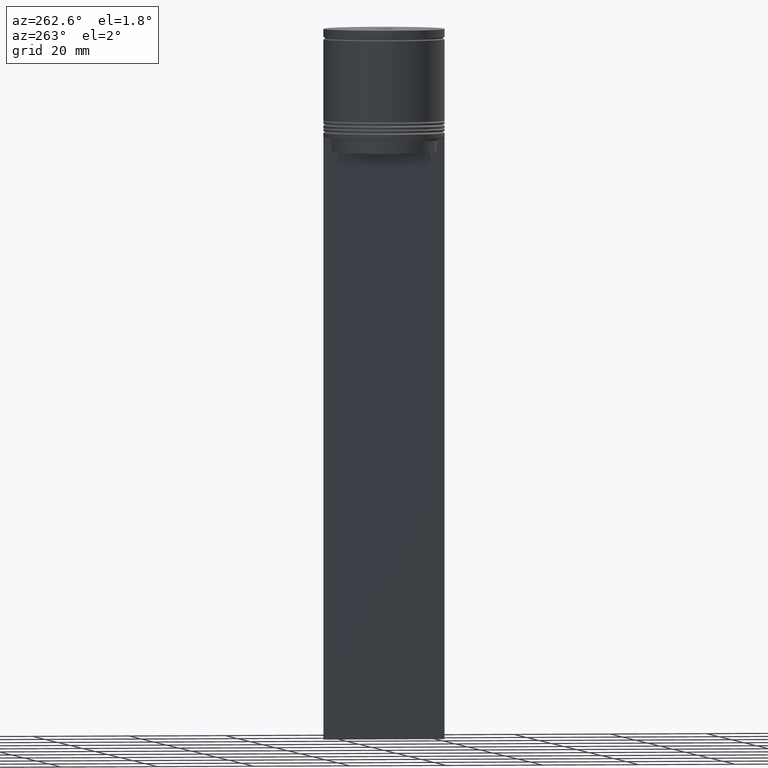
[diagram: clean part render]
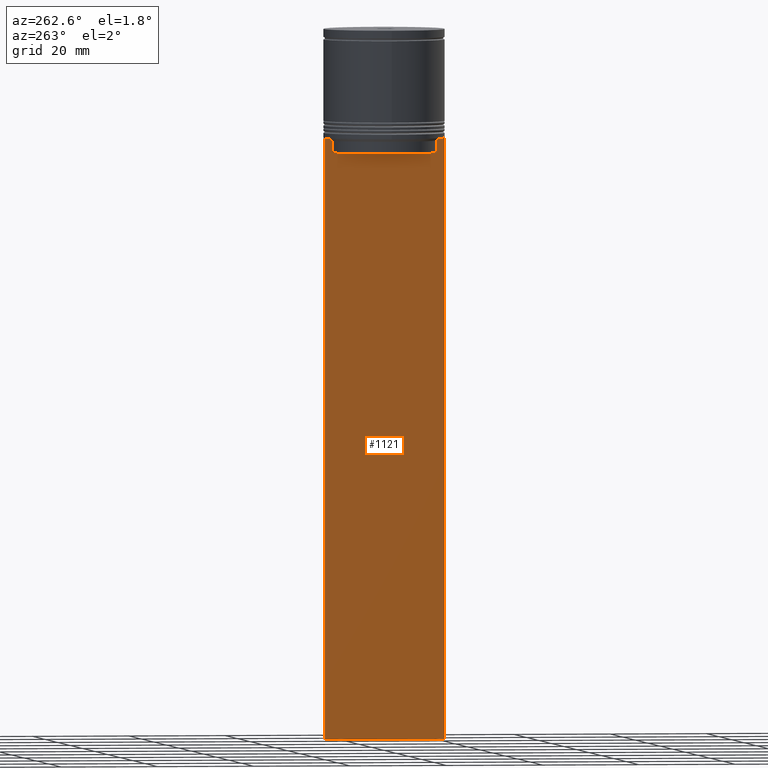
[diagram: same view with one face highlighted and labeled with its STEP entity id]
A machine part, auxiliary view. The second image highlights one B-rep face of the part: STEP entity #1121.
In plain terms, the highlighted planar face has unit normal (-1, 0, 0).
Its self-contained STEP definition (entity closure, byte-faithful):
#1 = ORIENTED_EDGE ( 'NONE', *, *, #25, .F. ) ;
#25 = EDGE_CURVE ( 'NONE', #1956, #538, #380, .T. ) ;
#72 = DIRECTION ( 'NONE',  ( 0.000000000000000000, 0.000000000000000000, -1.000000000000000000 ) ) ;
#97 = CARTESIAN_POINT ( 'NONE',  ( -0.5000000000000000000, 11.38902980942626897, -22.50000000000000000 ) ) ;
#100 = CARTESIAN_POINT ( 'NONE',  ( -0.5000000000000000000, -10.88852607105297032, 0.000000000000000000 ) ) ;
#101 = EDGE_CURVE ( 'NONE', #1593, #1224, #1682, .T. ) ;
#112 = CARTESIAN_POINT ( 'NONE',  ( -0.5000000000000000000, 11.38902980942626897, -22.50000000000000000 ) ) ;
#113 = VERTEX_POINT ( 'NONE', #254 ) ;
#116 = FACE_OUTER_BOUND ( 'NONE', #1432, .T. ) ;
#118 = EDGE_CURVE ( 'NONE', #504, #113, #468, .T. ) ;
#135 = CARTESIAN_POINT ( 'NONE',  ( -0.5000000000000000000, 10.88852607105297032, 0.000000000000000000 ) ) ;
#140 = CARTESIAN_POINT ( 'NONE',  ( -0.5000000000000000000, -12.38991525394746596, -22.50000000000000000 ) ) ;
#166 = LINE ( 'NONE', #822, #1579 ) ;
#168 = CARTESIAN_POINT ( 'NONE',  ( -0.5000000000000000000, -12.49999999999999289, -22.50000000000000000 ) ) ;
#175 = CARTESIAN_POINT ( 'NONE',  ( -0.5000000000000000000, -10.88852607105296855, -25.50000000000000000 ) ) ;
#178 = DIRECTION ( 'NONE',  ( 0.000000000000000000, -1.000000000000000000, 0.000000000000000000 ) ) ;
#217 = VECTOR ( 'NONE', #72, 1000.000000000000000 ) ;
#240 = VECTOR ( 'NONE', #577, 1000.000000000000000 ) ;
#249 = CARTESIAN_POINT ( 'NONE',  ( -0.5000000000000000000, 12.50000000000000711, -22.50000000000000000 ) ) ;
#254 = CARTESIAN_POINT ( 'NONE',  ( -0.5000000000000000000, 10.88852607105297032, -22.99999999999999645 ) ) ;
#289 = VERTEX_POINT ( 'NONE', #168 ) ;
#359 = ORIENTED_EDGE ( 'NONE', *, *, #1865, .T. ) ;
#380 = LINE ( 'NONE', #716, #1332 ) ;
#419 = CARTESIAN_POINT ( 'NONE',  ( -0.5000000000000000000, -11.05536450423839412, -22.83333718996392747 ) ) ;
#432 = DIRECTION ( 'NONE',  ( -1.000000000000000000, 0.000000000000000000, 0.000000000000000000 ) ) ;
#434 = ORIENTED_EDGE ( 'NONE', *, *, #826, .F. ) ;
#442 = LINE ( 'NONE', #135, #2019 ) ;
#453 = CARTESIAN_POINT ( 'NONE',  ( -0.5000000000000000000, -12.49999999999999289, -22.50000000000000000 ) ) ;
#456 = ORIENTED_EDGE ( 'NONE', *, *, #2080, .F. ) ;
#460 = VERTEX_POINT ( 'NONE', #249 ) ;
#468 = B_SPLINE_CURVE_WITH_KNOTS ( 'NONE', 3,
 ( #97, #1361, #2013, #1290 ),
 .UNSPECIFIED., .F., .F.,
 ( 4, 4 ),
 ( 0.01935560801904635808, 0.02006307108468587813 ),
 .UNSPECIFIED. ) ;
#479 = CARTESIAN_POINT ( 'NONE',  ( -0.5000000000000000000, -10.88852607105297032, -22.99999999999999645 ) ) ;
#484 = EDGE_CURVE ( 'NONE', #1188, #622, #1080, .T. ) ;
#504 = VERTEX_POINT ( 'NONE', #112 ) ;
#517 = DIRECTION ( 'NONE',  ( 0.000000000000000000, -1.000000000000000000, 0.000000000000000000 ) ) ;
#525 = CARTESIAN_POINT ( 'NONE',  ( -0.5000000000000000000, 12.50000000000000711, 2.519992006393609874 ) ) ;
#538 = VERTEX_POINT ( 'NONE', #2061 ) ;
#550 = CARTESIAN_POINT ( 'NONE',  ( -0.5000000000000000000, -12.49999999999999289, 2.519992006393609874 ) ) ;
#561 = VECTOR ( 'NONE', #178, 1000.000000000000000 ) ;
#577 = DIRECTION ( 'NONE',  ( -0.000000000000000000, -0.000000000000000000, 1.000000000000000000 ) ) ;
#590 = CARTESIAN_POINT ( 'NONE',  ( -0.5000000000000000000, -10.88852607105297032, -22.99999999999999645 ) ) ;
#612 = ORIENTED_EDGE ( 'NONE', *, *, #630, .F. ) ;
#622 = VERTEX_POINT ( 'NONE', #1128 ) ;
#630 = EDGE_CURVE ( 'NONE', #1368, #289, #166, .T. ) ;
#647 = CARTESIAN_POINT ( 'NONE',  ( -0.5000000000000000000, -12.49999999999999289, -22.50000000000000000 ) ) ;
#686 = LINE ( 'NONE', #453, #561 ) ;
#715 = CARTESIAN_POINT ( 'NONE',  ( -0.5000000000000000000, 10.90000000000000924, -25.50000000000000000 ) ) ;
#716 = CARTESIAN_POINT ( 'NONE',  ( -0.5000000000000000000, -12.49999999999999289, -146.5000000000000000 ) ) ;
#740 = LINE ( 'NONE', #100, #240 ) ;
#773 = VECTOR ( 'NONE', #1287, 1000.000000000000000 ) ;
#789 = ORIENTED_EDGE ( 'NONE', *, *, #978, .F. ) ;
#822 = CARTESIAN_POINT ( 'NONE',  ( -0.5000000000000000000, -12.49999999999999289, -22.50000000000000000 ) ) ;
#826 = EDGE_CURVE ( 'NONE', #289, #1956, #1809, .T. ) ;
#830 = CARTESIAN_POINT ( 'NONE',  ( -0.5000000000000000000, -12.49999999999999289, -22.50000000000000000 ) ) ;
#834 = ORIENTED_EDGE ( 'NONE', *, *, #101, .F. ) ;
#848 = LINE ( 'NONE', #525, #1980 ) ;
#874 = EDGE_CURVE ( 'NONE', #622, #1368, #1148, .T. ) ;
#878 = CARTESIAN_POINT ( 'NONE',  ( -0.5000000000000000000, -11.22219891450653151, -22.66667035398018726 ) ) ;
#879 = ORIENTED_EDGE ( 'NONE', *, *, #118, .F. ) ;
#912 = PLANE ( 'NONE',  #1804 ) ;
#924 = EDGE_CURVE ( 'NONE', #460, #1859, #1312, .T. ) ;
#934 = ORIENTED_EDGE ( 'NONE', *, *, #484, .F. ) ;
#978 = EDGE_CURVE ( 'NONE', #113, #1593, #442, .T. ) ;
#1007 = VECTOR ( 'NONE', #517, 1000.000000000000000 ) ;
#1080 = B_SPLINE_CURVE_WITH_KNOTS ( 'NONE', 3,
 ( #590, #419, #878, #2022 ),
 .UNSPECIFIED., .F., .F.,
 ( 4, 4 ),
 ( 0.05041323384703231408, 0.05112713601261610619 ),
 .UNSPECIFIED. ) ;
#1092 = DIRECTION ( 'NONE',  ( 0.000000000000000000, 0.000000000000000000, -1.000000000000000000 ) ) ;
#1121 = ADVANCED_FACE ( 'NONE', ( #116 ), #912, .T. ) ;
#1128 = CARTESIAN_POINT ( 'NONE',  ( -0.5000000000000000000, -11.38902980942626897, -22.50000000000000000 ) ) ;
#1147 = ORIENTED_EDGE ( 'NONE', *, *, #924, .F. ) ;
#1148 = LINE ( 'NONE', #647, #773 ) ;
#1187 = DIRECTION ( 'NONE',  ( 0.000000000000000000, -1.000000000000000000, 0.000000000000000000 ) ) ;
#1188 = VERTEX_POINT ( 'NONE', #479 ) ;
#1222 = ORIENTED_EDGE ( 'NONE', *, *, #874, .F. ) ;
#1224 = VERTEX_POINT ( 'NONE', #175 ) ;
#1287 = DIRECTION ( 'NONE',  ( 0.000000000000000000, -1.000000000000000000, 0.000000000000000000 ) ) ;
#1290 = CARTESIAN_POINT ( 'NONE',  ( -0.5000000000000000000, 10.88852607105297032, -22.99999999999999645 ) ) ;
#1312 = LINE ( 'NONE', #830, #1007 ) ;
#1325 = DIRECTION ( 'NONE',  ( 0.000000000000000000, 1.000000000000000000, 0.000000000000000000 ) ) ;
#1332 = VECTOR ( 'NONE', #1325, 1000.000000000000000 ) ;
#1361 = CARTESIAN_POINT ( 'NONE',  ( -0.5000000000000000000, 11.22219891375843126, -22.66667035472756808 ) ) ;
#1368 = VERTEX_POINT ( 'NONE', #140 ) ;
#1432 = EDGE_LOOP ( 'NONE', ( #879, #1725, #1147, #359, #1, #434, #612, #1222, #934, #456, #834, #789 ) ) ;
#1482 = CARTESIAN_POINT ( 'NONE',  ( -0.5000000000000000000, -12.49999999999999289, 2.519992006393609874 ) ) ;
#1552 = CARTESIAN_POINT ( 'NONE',  ( -0.5000000000000000000, 10.88852607105296855, -25.50000000000000000 ) ) ;
#1554 = DIRECTION ( 'NONE',  ( 0.000000000000000000, 0.000000000000000000, 1.000000000000000000 ) ) ;
#1569 = EDGE_CURVE ( 'NONE', #1859, #504, #686, .T. ) ;
#1579 = VECTOR ( 'NONE', #1937, 1000.000000000000000 ) ;
#1593 = VERTEX_POINT ( 'NONE', #1552 ) ;
#1623 = DIRECTION ( 'NONE',  ( 0.000000000000000000, 0.000000000000000000, -1.000000000000000000 ) ) ;
#1630 = CARTESIAN_POINT ( 'NONE',  ( -0.5000000000000000000, 12.38991525394746596, -22.50000000000000000 ) ) ;
#1682 = LINE ( 'NONE', #715, #1777 ) ;
#1725 = ORIENTED_EDGE ( 'NONE', *, *, #1569, .F. ) ;
#1777 = VECTOR ( 'NONE', #1187, 1000.000000000000000 ) ;
#1804 = AXIS2_PLACEMENT_3D ( 'NONE', #550, #432, #1554 ) ;
#1809 = LINE ( 'NONE', #1482, #217 ) ;
#1859 = VERTEX_POINT ( 'NONE', #1630 ) ;
#1865 = EDGE_CURVE ( 'NONE', #460, #538, #848, .T. ) ;
#1937 = DIRECTION ( 'NONE',  ( 0.000000000000000000, -1.000000000000000000, 0.000000000000000000 ) ) ;
#1945 = CARTESIAN_POINT ( 'NONE',  ( -0.5000000000000000000, -12.49999999999999289, -146.5000000000000000 ) ) ;
#1956 = VERTEX_POINT ( 'NONE', #1945 ) ;
#1980 = VECTOR ( 'NONE', #1623, 1000.000000000000000 ) ;
#2013 = CARTESIAN_POINT ( 'NONE',  ( -0.5000000000000000000, 11.05536450345590715, -22.83333719074559554 ) ) ;
#2019 = VECTOR ( 'NONE', #1092, 1000.000000000000000 ) ;
#2022 = CARTESIAN_POINT ( 'NONE',  ( -0.5000000000000000000, -11.38902980942626897, -22.50000000000000000 ) ) ;
#2061 = CARTESIAN_POINT ( 'NONE',  ( -0.5000000000000000000, 12.50000000000000711, -146.5000000000000000 ) ) ;
#2080 = EDGE_CURVE ( 'NONE', #1224, #1188, #740, .T. ) ;